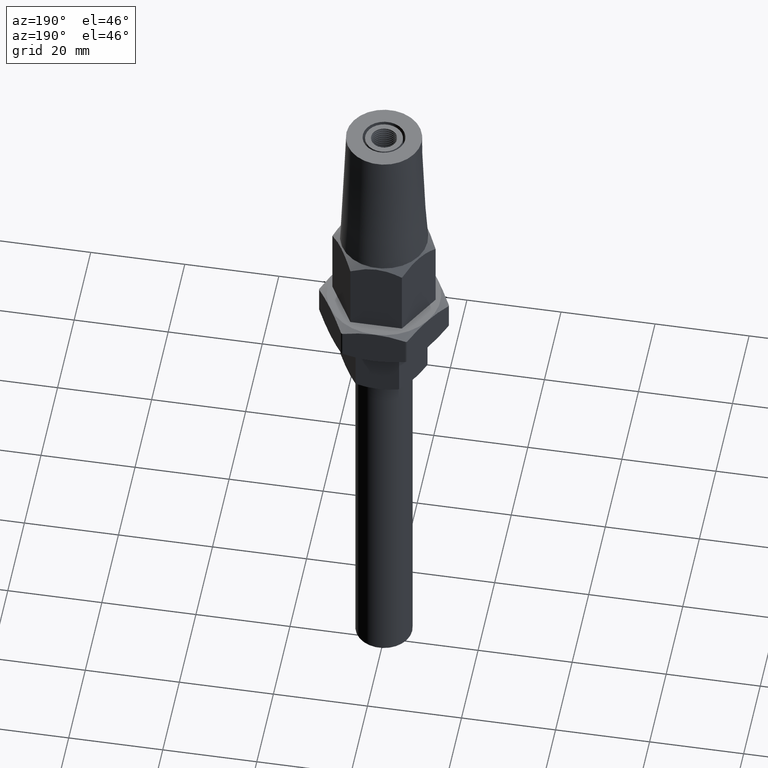
[diagram: clean part render]
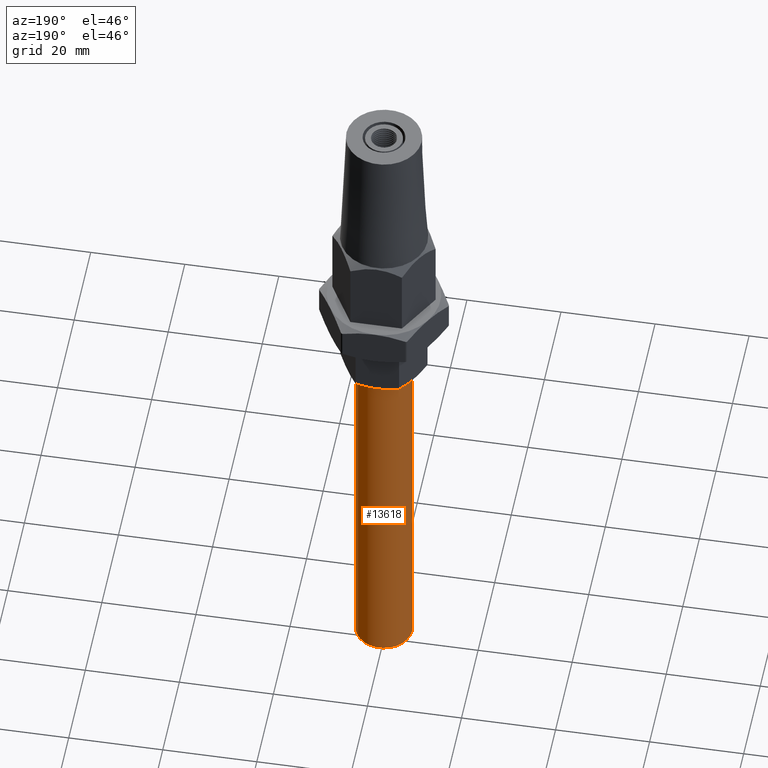
[diagram: same view with one face highlighted and labeled with its STEP entity id]
A machine part, auxiliary view. The second image highlights one B-rep face of the part: STEP entity #13618.
In plain terms, the highlighted cylindrical surface (edge-blend (fillet) strip) has radius 6 mm, axis along (0, 0, 1).
Its self-contained STEP definition (entity closure, byte-faithful):
#1410 = DIRECTION ( 'NONE',  ( 1.000000000000000000, 0.0000000000000000000, 0.0000000000000000000 ) ) ;
#1647 = CARTESIAN_POINT ( 'NONE',  ( 6.000000000000000900, 0.0000000000000000000, -87.00000000000001400 ) ) ;
#1853 = DIRECTION ( 'NONE',  ( 1.000000000000000000, 0.0000000000000000000, 0.0000000000000000000 ) ) ;
#1899 = ORIENTED_EDGE ( 'NONE', *, *, #6743, .T. ) ;
#2101 = AXIS2_PLACEMENT_3D ( 'NONE', #2609, #2673, #11257 ) ;
#2216 = AXIS2_PLACEMENT_3D ( 'NONE', #14344, #17279, #1410 ) ;
#2609 = CARTESIAN_POINT ( 'NONE',  ( 0.0000000000000000000, 0.0000000000000000000, -86.00000000000000000 ) ) ;
#2673 = DIRECTION ( 'NONE',  ( 0.0000000000000000000, 0.0000000000000000000, 1.000000000000000000 ) ) ;
#2984 = VECTOR ( 'NONE', #14770, 1000.000000000000000 ) ;
#3073 = ORIENTED_EDGE ( 'NONE', *, *, #11358, .T. ) ;
#4344 = VERTEX_POINT ( 'NONE', #16784 ) ;
#4970 = CARTESIAN_POINT ( 'NONE',  ( -6.000000000000000900, 7.347880794884120700E-016, -87.00000000000001400 ) ) ;
#6120 = CARTESIAN_POINT ( 'NONE',  ( 0.0000000000000000000, 0.0000000000000000000, -7.000000000000006200 ) ) ;
#6743 = EDGE_CURVE ( 'NONE', #15227, #18649, #17256, .T. ) ;
#9680 = EDGE_CURVE ( 'NONE', #15227, #14409, #10227, .T. ) ;
#10227 = LINE ( 'NONE', #1647, #2984 ) ;
#11257 = DIRECTION ( 'NONE',  ( -1.000000000000000000, 0.0000000000000000000, 0.0000000000000000000 ) ) ;
#11293 = EDGE_LOOP ( 'NONE', ( #1899, #17257, #3073, #16219 ) ) ;
#11358 = EDGE_CURVE ( 'NONE', #4344, #14409, #13752, .T. ) ;
#11635 = LINE ( 'NONE', #4970, #16804 ) ;
#12114 = DIRECTION ( 'NONE',  ( -0.0000000000000000000, -0.0000000000000000000, 1.000000000000000000 ) ) ;
#12595 = EDGE_CURVE ( 'NONE', #18649, #4344, #11635, .T. ) ;
#12868 = CARTESIAN_POINT ( 'NONE',  ( -6.000000000000000900, 7.347880794884120700E-016, -86.00000000000000000 ) ) ;
#13377 = AXIS2_PLACEMENT_3D ( 'NONE', #6120, #14864, #1853 ) ;
#13618 = ADVANCED_FACE ( 'NONE', ( #14769 ), #18559, .T. ) ;
#13752 = CIRCLE ( 'NONE', #13377, 6.000000000000000900 ) ;
#14344 = CARTESIAN_POINT ( 'NONE',  ( 0.0000000000000000000, 0.0000000000000000000, -87.00000000000001400 ) ) ;
#14409 = VERTEX_POINT ( 'NONE', #16122 ) ;
#14769 = FACE_OUTER_BOUND ( 'NONE', #11293, .T. ) ;
#14770 = DIRECTION ( 'NONE',  ( -0.0000000000000000000, -0.0000000000000000000, 1.000000000000000000 ) ) ;
#14864 = DIRECTION ( 'NONE',  ( -0.0000000000000000000, 0.0000000000000000000, -1.000000000000000000 ) ) ;
#15227 = VERTEX_POINT ( 'NONE', #15328 ) ;
#15328 = CARTESIAN_POINT ( 'NONE',  ( 6.000000000000000900, 0.0000000000000000000, -86.00000000000000000 ) ) ;
#16122 = CARTESIAN_POINT ( 'NONE',  ( 6.000000000000000900, 0.0000000000000000000, -7.000000000000006200 ) ) ;
#16219 = ORIENTED_EDGE ( 'NONE', *, *, #9680, .F. ) ;
#16784 = CARTESIAN_POINT ( 'NONE',  ( -6.000000000000000900, 7.347880794884120700E-016, -7.000000000000006200 ) ) ;
#16804 = VECTOR ( 'NONE', #12114, 1000.000000000000000 ) ;
#17256 = CIRCLE ( 'NONE', #2101, 6.000000000000000900 ) ;
#17257 = ORIENTED_EDGE ( 'NONE', *, *, #12595, .T. ) ;
#17279 = DIRECTION ( 'NONE',  ( -0.0000000000000000000, -0.0000000000000000000, 1.000000000000000000 ) ) ;
#18559 = CYLINDRICAL_SURFACE ( 'NONE', #2216, 6.000000000000000900 ) ;
#18649 = VERTEX_POINT ( 'NONE', #12868 ) ;